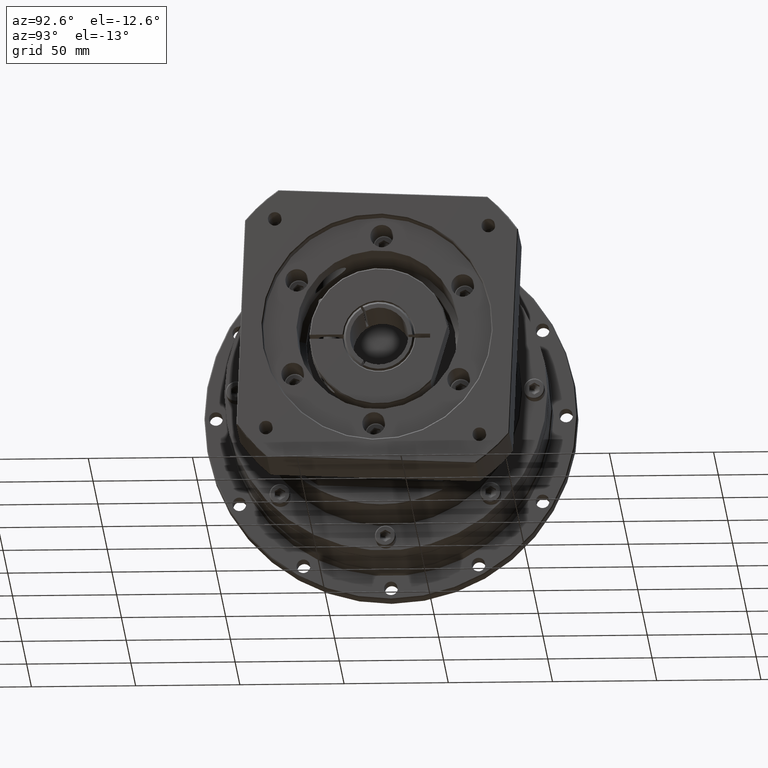
[diagram: clean part render]
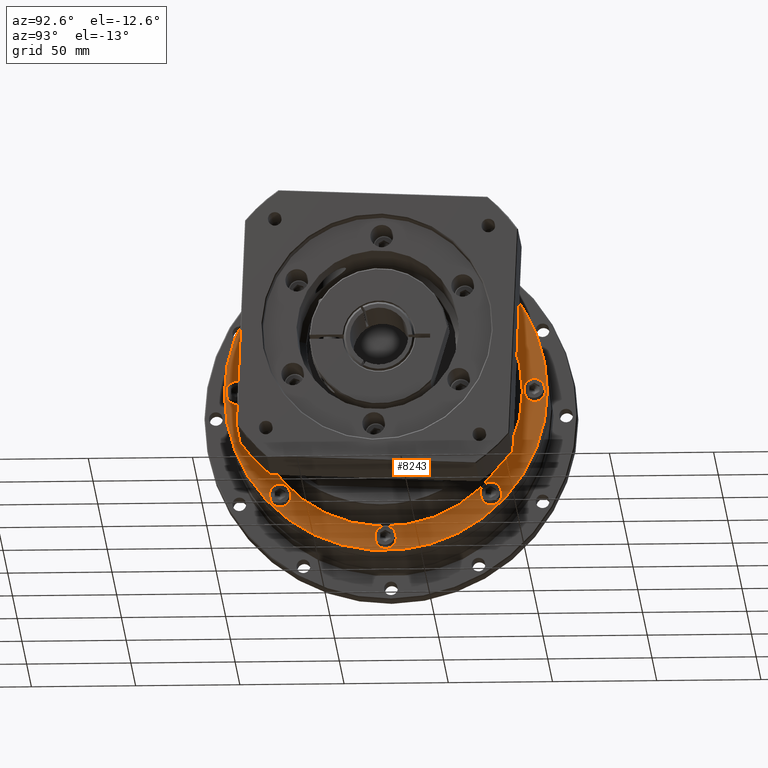
[diagram: same view with one face highlighted and labeled with its STEP entity id]
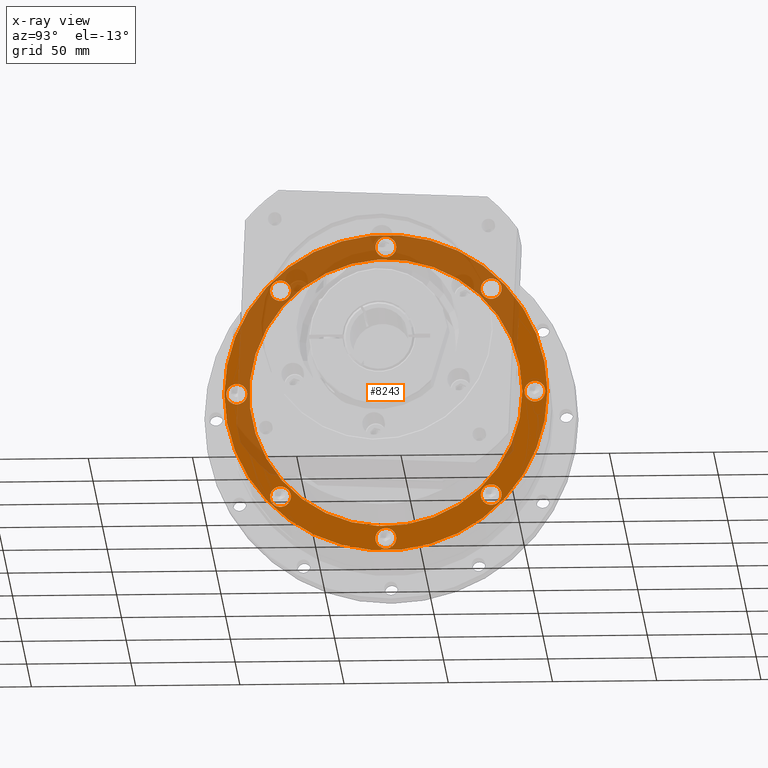
[diagram: x-ray of the same camera — body ghosted, the highlighted face saturated]
A machine part, auxiliary view. The second image highlights one B-rep face of the part: STEP entity #8243.
The next image is the same camera in x-ray: the body ghosted, the highlighted face saturated — about 46% of this face is hidden behind the body in this view.
In plain terms, the highlighted planar face has unit normal (1, -0, 0).
Its self-contained STEP definition (entity closure, byte-faithful):
#333=PLANE('',#9006);
#698=FACE_BOUND('',#1787,.T.);
#699=FACE_BOUND('',#1788,.T.);
#700=FACE_BOUND('',#1789,.T.);
#701=FACE_BOUND('',#1790,.T.);
#702=FACE_BOUND('',#1791,.T.);
#703=FACE_BOUND('',#1792,.T.);
#704=FACE_BOUND('',#1793,.T.);
#705=FACE_BOUND('',#1794,.T.);
#706=FACE_BOUND('',#1795,.T.);
#1134=FACE_OUTER_BOUND('',#1786,.T.);
#1786=EDGE_LOOP('',(#5995));
#1787=EDGE_LOOP('',(#5996));
#1788=EDGE_LOOP('',(#5997));
#1789=EDGE_LOOP('',(#5998));
#1790=EDGE_LOOP('',(#5999));
#1791=EDGE_LOOP('',(#6000));
#1792=EDGE_LOOP('',(#6001));
#1793=EDGE_LOOP('',(#6002));
#1794=EDGE_LOOP('',(#6003));
#1795=EDGE_LOOP('',(#6004));
#2696=CIRCLE('',#9007,77.5);
#2697=CIRCLE('',#9008,5.);
#2698=CIRCLE('',#9009,5.);
#2699=CIRCLE('',#9010,5.);
#2700=CIRCLE('',#9011,5.);
#2701=CIRCLE('',#9012,5.);
#2702=CIRCLE('',#9013,5.);
#2703=CIRCLE('',#9014,5.);
#2704=CIRCLE('',#9015,5.);
#2705=CIRCLE('',#9016,65.5);
#3952=VERTEX_POINT('',#13003);
#3953=VERTEX_POINT('',#13005);
#3954=VERTEX_POINT('',#13007);
#3955=VERTEX_POINT('',#13009);
#3956=VERTEX_POINT('',#13011);
#3957=VERTEX_POINT('',#13013);
#3958=VERTEX_POINT('',#13015);
#3959=VERTEX_POINT('',#13017);
#3960=VERTEX_POINT('',#13019);
#3961=VERTEX_POINT('',#13021);
#4772=EDGE_CURVE('',#3952,#3952,#2696,.T.);
#4773=EDGE_CURVE('',#3953,#3953,#2697,.T.);
#4774=EDGE_CURVE('',#3954,#3954,#2698,.T.);
#4775=EDGE_CURVE('',#3955,#3955,#2699,.T.);
#4776=EDGE_CURVE('',#3956,#3956,#2700,.T.);
#4777=EDGE_CURVE('',#3957,#3957,#2701,.T.);
#4778=EDGE_CURVE('',#3958,#3958,#2702,.T.);
#4779=EDGE_CURVE('',#3959,#3959,#2703,.T.);
#4780=EDGE_CURVE('',#3960,#3960,#2704,.T.);
#4781=EDGE_CURVE('',#3961,#3961,#2705,.T.);
#5995=ORIENTED_EDGE('',*,*,#4772,.T.);
#5996=ORIENTED_EDGE('',*,*,#4773,.T.);
#5997=ORIENTED_EDGE('',*,*,#4774,.T.);
#5998=ORIENTED_EDGE('',*,*,#4775,.T.);
#5999=ORIENTED_EDGE('',*,*,#4776,.T.);
#6000=ORIENTED_EDGE('',*,*,#4777,.T.);
#6001=ORIENTED_EDGE('',*,*,#4778,.T.);
#6002=ORIENTED_EDGE('',*,*,#4779,.T.);
#6003=ORIENTED_EDGE('',*,*,#4780,.T.);
#6004=ORIENTED_EDGE('',*,*,#4781,.F.);
#8243=ADVANCED_FACE('',(#1134,#698,#699,#700,#701,#702,#703,#704,#705,#706),
#333,.T.);
#9006=AXIS2_PLACEMENT_3D('',#13002,#10419,#10420);
#9007=AXIS2_PLACEMENT_3D('',#13004,#10421,#10422);
#9008=AXIS2_PLACEMENT_3D('',#13006,#10423,#10424);
#9009=AXIS2_PLACEMENT_3D('',#13008,#10425,#10426);
#9010=AXIS2_PLACEMENT_3D('',#13010,#10427,#10428);
#9011=AXIS2_PLACEMENT_3D('',#13012,#10429,#10430);
#9012=AXIS2_PLACEMENT_3D('',#13014,#10431,#10432);
#9013=AXIS2_PLACEMENT_3D('',#13016,#10433,#10434);
#9014=AXIS2_PLACEMENT_3D('',#13018,#10435,#10436);
#9015=AXIS2_PLACEMENT_3D('',#13020,#10437,#10438);
#9016=AXIS2_PLACEMENT_3D('',#13022,#10439,#10440);
#10419=DIRECTION('center_axis',(1.,-1.69106409014785E-16,2.57789637496635E-15));
#10420=DIRECTION('ref_axis',(2.8421709430404E-15,-7.105427357601E-16,-1.));
#10421=DIRECTION('center_axis',(1.,-1.69106409014785E-16,2.57789637496635E-15));
#10422=DIRECTION('ref_axis',(2.57789637496635E-15,-9.99200722162645E-16,
-1.));
#10423=DIRECTION('center_axis',(-1.,-2.55504275849386E-15,-1.91941098728568E-15));
#10424=DIRECTION('ref_axis',(-2.56068990683458E-15,1.,5.99753347218747E-17));
#10425=DIRECTION('center_axis',(-1.,-2.94362081711267E-15,-2.3556317703563E-15));
#10426=DIRECTION('ref_axis',(-2.94926796545338E-15,1.,-8.55958660593886E-16));
#10427=DIRECTION('center_axis',(-1.,-3.52136159215132E-15,-2.20458633181075E-15));
#10428=DIRECTION('ref_axis',(-3.52700874049204E-15,1.,1.15486485953133E-16));
#10429=DIRECTION('center_axis',(-1.,-2.71207416183896E-15,-2.54488109589354E-15));
#10430=DIRECTION('ref_axis',(-2.71772131017967E-15,1.,8.77309103374994E-17));
#10431=DIRECTION('center_axis',(-1.,-2.04594034706387E-15,-2.25811558008852E-15));
#10432=DIRECTION('ref_axis',(-2.05158749540458E-15,1.,1.43242061568757E-16));
#10433=DIRECTION('center_axis',(-1.,-1.8484919741588E-15,-2.39966519701908E-15));
#10434=DIRECTION('ref_axis',(-1.85413912249951E-15,1.,-3.71691799328266E-17));
#10435=DIRECTION('center_axis',(-1.,-3.82545653005977E-15,-2.70145244726802E-15));
#10436=DIRECTION('ref_axis',(-3.83110367840049E-15,1.,1.84875424992203E-16));
#10437=DIRECTION('center_axis',(-1.,-3.62544500070995E-15,-2.42108178009932E-15));
#10438=DIRECTION('ref_axis',(-3.63109214905066E-15,1.,4.46418349061673E-18));
#10439=DIRECTION('center_axis',(1.,-1.69106409014785E-16,2.57789637496635E-15));
#10440=DIRECTION('ref_axis',(-1.69106409014788E-16,-1.,1.18289774203475E-15));
#13002=CARTESIAN_POINT('Origin',(-85.9298081002762,44.7699637530928,-7.61221048782445));
#13003=CARTESIAN_POINT('',(-85.9298081002762,57.2699637530928,-7.61221048782446));
#13004=CARTESIAN_POINT('Origin',(-85.9298081002762,-20.2300362469072,-7.61221048782438));
#13005=CARTESIAN_POINT('',(-85.9298081002762,-65.7881711017454,42.9459243670138));
#13006=CARTESIAN_POINT('Origin',(-85.9298081002762,-70.7881711017454,42.9459243670138));
#13007=CARTESIAN_POINT('',(-85.9298081002762,-65.7881711017454,-58.1703453426626));
#13008=CARTESIAN_POINT('Origin',(-85.9298081002761,-70.7881711017454,-58.1703453426626));
#13009=CARTESIAN_POINT('',(-85.9298081002762,35.3280986079305,-58.1703453426627));
#13010=CARTESIAN_POINT('Origin',(-85.9298081002762,30.3280986079305,-58.1703453426627));
#13011=CARTESIAN_POINT('',(-85.929808100276,-15.2300362469075,-79.1122104878245));
#13012=CARTESIAN_POINT('Origin',(-85.929808100276,-20.2300362469075,-79.1122104878245));
#13013=CARTESIAN_POINT('',(-85.9298081002762,-15.2300362469072,63.8877895121757));
#13014=CARTESIAN_POINT('Origin',(-85.9298081002762,-20.2300362469072,63.8877895121757));
#13015=CARTESIAN_POINT('',(-85.9298081002762,-86.7300362469074,-7.61221048782431));
#13016=CARTESIAN_POINT('Origin',(-85.9298081002762,-91.7300362469074,-7.61221048782431));
#13017=CARTESIAN_POINT('',(-85.9298081002762,56.2699637530924,-7.61221048782446));
#13018=CARTESIAN_POINT('Origin',(-85.9298081002762,51.2699637530924,-7.61221048782446));
#13019=CARTESIAN_POINT('',(-85.9298081002762,35.3280986079306,42.9459243670137));
#13020=CARTESIAN_POINT('Origin',(-85.9298081002762,30.3280986079306,42.9459243670137));
#13021=CARTESIAN_POINT('',(-85.9298081002762,45.2699637530928,-7.61221048782445));
#13022=CARTESIAN_POINT('Origin',(-85.9298081002762,-20.2300362469072,-7.61221048782438));